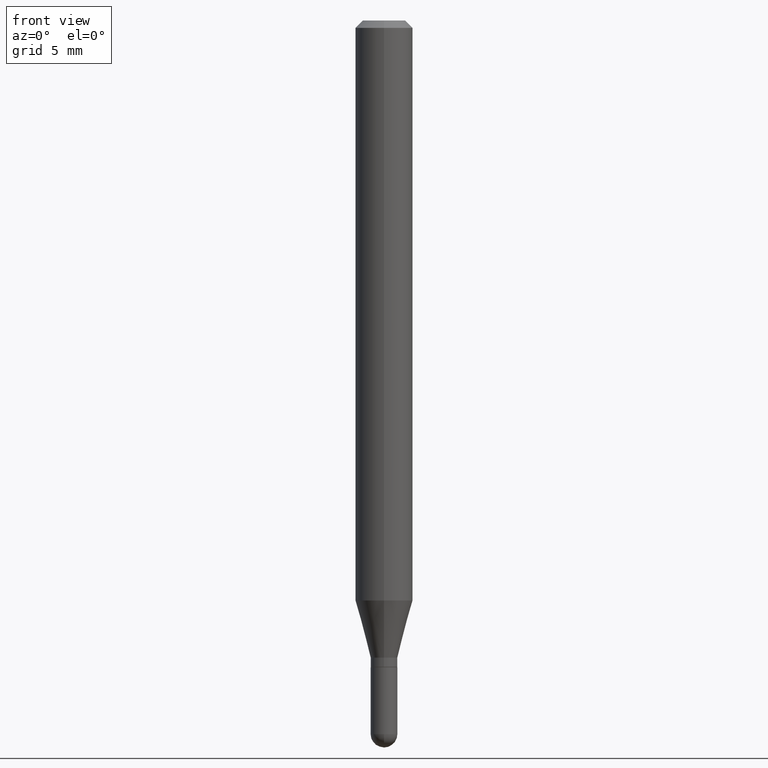
[diagram: clean part render]
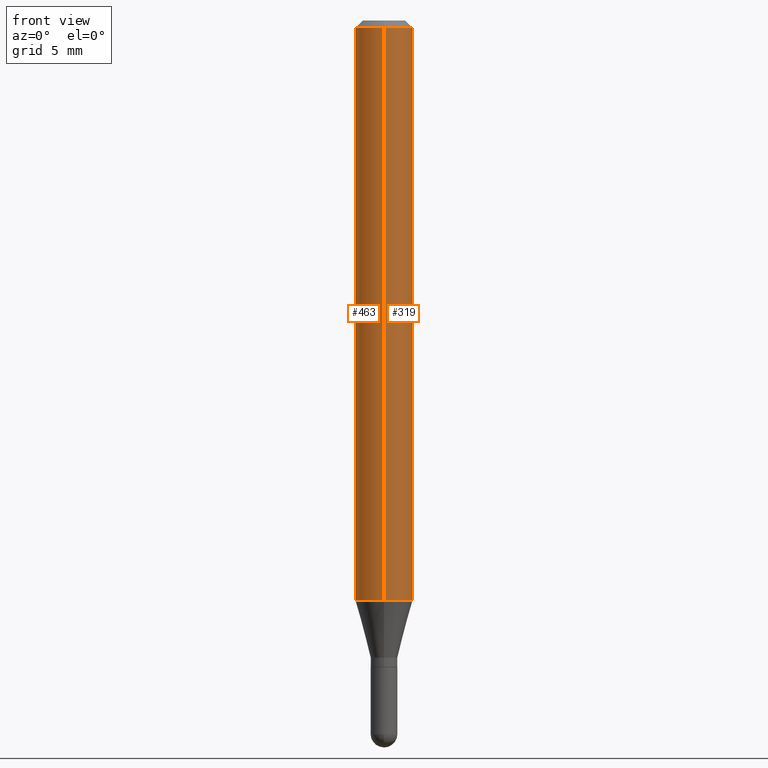
[diagram: same view with one multi-face feature highlighted, each face labeled with its STEP entity id]
A machine part, front view. The highlighted faces form ONE feature: a constant-radius fillet chain: 2 tangent blend faces with common blend radius 1.4999 mm. The faces share edges in the B-rep.
Their STEP definitions:
[1] entity #319 (Cylinder):
#30 = CARTESIAN_POINT ( 'NONE',  ( 4.195754854663390985E-16, 0.05904999999999999832, -2.061716865706596050E-16 ) ) ;
#57 = DIRECTION ( 'NONE',  ( -6.982962677686265922E-15, -1.000000000000000000, 3.491476487225395476E-15 ) ) ;
#63 = ORIENTED_EDGE ( 'NONE', *, *, #437, .T. ) ;
#64 = AXIS2_PLACEMENT_3D ( 'NONE', #454, #464, #254 ) ;
#67 = CARTESIAN_POINT ( 'NONE',  ( 4.195754854663680892E-16, 0.05904999999999580723, -1.193540399561580756 ) ) ;
#95 = ORIENTED_EDGE ( 'NONE', *, *, #348, .F. ) ;
#126 = CYLINDRICAL_SURFACE ( 'NONE', #137, 0.05904999999999999832 ) ;
#137 = AXIS2_PLACEMENT_3D ( 'NONE', #383, #165, #57 ) ;
#139 = LINE ( 'NONE', #30, #427 ) ;
#165 = DIRECTION ( 'NONE',  ( -2.445472194051704055E-29, 3.491476487225395476E-15, 1.000000000000000000 ) ) ;
#175 = EDGE_LOOP ( 'NONE', ( #193, #63, #95, #308 ) ) ;
#193 = ORIENTED_EDGE ( 'NONE', *, *, #247, .T. ) ;
#194 = DIRECTION ( 'NONE',  ( -2.445472194051704055E-29, 3.491476487225395476E-15, 1.000000000000000000 ) ) ;
#219 = LINE ( 'NONE', #498, #438 ) ;
#225 = VERTEX_POINT ( 'NONE', #432 ) ;
#239 = CARTESIAN_POINT ( 'NONE',  ( 4.195754854663684343E-16, 0.05904999999999994975, -0.01500000000000029955 ) ) ;
#247 = EDGE_CURVE ( 'NONE', #261, #402, #495, .T. ) ;
#254 = DIRECTION ( 'NONE',  ( -6.982962677686265922E-15, -1.000000000000000000, 3.505890868245046092E-15 ) ) ;
#259 = DIRECTION ( 'NONE',  ( -2.445472194051704055E-29, 3.491476487225395476E-15, 1.000000000000000000 ) ) ;
#260 = CARTESIAN_POINT ( 'NONE',  ( 2.918769859605206058E-29, -4.167218241622863015E-15, -1.193540399561580534 ) ) ;
#261 = VERTEX_POINT ( 'NONE', #483 ) ;
#265 = DIRECTION ( 'NONE',  ( -6.982962677686265922E-15, -1.000000000000000000, 4.626330217890369336E-15 ) ) ;
#271 = AXIS2_PLACEMENT_3D ( 'NONE', #260, #356, #265 ) ;
#303 = VERTEX_POINT ( 'NONE', #239 ) ;
#308 = ORIENTED_EDGE ( 'NONE', *, *, #399, .F. ) ;
#319 = ADVANCED_FACE ( 'NONE', ( #497 ), #126, .T. ) ;
#348 = EDGE_CURVE ( 'NONE', #225, #303, #355, .T. ) ;
#355 = CIRCLE ( 'NONE', #64, 0.05904999999999999832 ) ;
#356 = DIRECTION ( 'NONE',  ( -2.445472194051704055E-29, 3.491476487225395476E-15, 1.000000000000000000 ) ) ;
#383 = CARTESIAN_POINT ( 'NONE',  ( 0.000000000000000000, 0.000000000000000000, 0.000000000000000000 ) ) ;
#399 = EDGE_CURVE ( 'NONE', #261, #225, #219, .T. ) ;
#402 = VERTEX_POINT ( 'NONE', #67 ) ;
#427 = VECTOR ( 'NONE', #194, 39.37007874015748143 ) ;
#432 = CARTESIAN_POINT ( 'NONE',  ( -4.123439461173736383E-16, -0.05905000000000005383, -0.01499999999999988495 ) ) ;
#437 = EDGE_CURVE ( 'NONE', #402, #303, #139, .T. ) ;
#438 = VECTOR ( 'NONE', #259, 39.37007874015748143 ) ;
#454 = CARTESIAN_POINT ( 'NONE',  ( 3.668208291077578240E-31, -5.237214730838125755E-17, -0.01500000000000009139 ) ) ;
#464 = DIRECTION ( 'NONE',  ( -2.445472194051704055E-29, 3.491476487225395476E-15, 1.000000000000000000 ) ) ;
#483 = CARTESIAN_POINT ( 'NONE',  ( -4.123439461173449928E-16, -0.05905000000000418248, -1.193540399561580534 ) ) ;
#495 = CIRCLE ( 'NONE', #271, 0.05904999999999999832 ) ;
#497 = FACE_OUTER_BOUND ( 'NONE', #175, .T. ) ;
#498 = CARTESIAN_POINT ( 'NONE',  ( -4.123439461173739834E-16, -0.05904999999999999832, 2.061716865706596050E-16 ) ) ;
[2] entity #463 (Cylinder):
#27 = CARTESIAN_POINT ( 'NONE',  ( 2.918769859605206058E-29, -4.167218241622863015E-15, -1.193540399561580534 ) ) ;
#30 = CARTESIAN_POINT ( 'NONE',  ( 4.195754854663390985E-16, 0.05904999999999999832, -2.061716865706596050E-16 ) ) ;
#37 = AXIS2_PLACEMENT_3D ( 'NONE', #489, #251, #124 ) ;
#67 = CARTESIAN_POINT ( 'NONE',  ( 4.195754854663680892E-16, 0.05904999999999580723, -1.193540399561580756 ) ) ;
#81 = ORIENTED_EDGE ( 'NONE', *, *, #256, .T. ) ;
#111 = DIRECTION ( 'NONE',  ( -6.982962677686265922E-15, -1.000000000000000000, 4.626330217890369336E-15 ) ) ;
#123 = DIRECTION ( 'NONE',  ( -2.445472194051704055E-29, 3.491476487225395476E-15, 1.000000000000000000 ) ) ;
#124 = DIRECTION ( 'NONE',  ( -6.982962677686265922E-15, -1.000000000000000000, 3.505890868245046092E-15 ) ) ;
#139 = LINE ( 'NONE', #30, #427 ) ;
#145 = EDGE_LOOP ( 'NONE', ( #182, #81, #236, #479 ) ) ;
#181 = DIRECTION ( 'NONE',  ( -2.445472194051704055E-29, 3.491476487225395476E-15, 1.000000000000000000 ) ) ;
#182 = ORIENTED_EDGE ( 'NONE', *, *, #437, .F. ) ;
#194 = DIRECTION ( 'NONE',  ( -2.445472194051704055E-29, 3.491476487225395476E-15, 1.000000000000000000 ) ) ;
#219 = LINE ( 'NONE', #498, #438 ) ;
#225 = VERTEX_POINT ( 'NONE', #432 ) ;
#236 = ORIENTED_EDGE ( 'NONE', *, *, #399, .T. ) ;
#239 = CARTESIAN_POINT ( 'NONE',  ( 4.195754854663684343E-16, 0.05904999999999994975, -0.01500000000000029955 ) ) ;
#250 = CYLINDRICAL_SURFACE ( 'NONE', #364, 0.05904999999999999832 ) ;
#251 = DIRECTION ( 'NONE',  ( -2.445472194051704055E-29, 3.491476487225395476E-15, 1.000000000000000000 ) ) ;
#256 = EDGE_CURVE ( 'NONE', #402, #261, #272, .T. ) ;
#259 = DIRECTION ( 'NONE',  ( -2.445472194051704055E-29, 3.491476487225395476E-15, 1.000000000000000000 ) ) ;
#261 = VERTEX_POINT ( 'NONE', #483 ) ;
#272 = CIRCLE ( 'NONE', #471, 0.05904999999999999832 ) ;
#282 = CIRCLE ( 'NONE', #37, 0.05904999999999999832 ) ;
#284 = DIRECTION ( 'NONE',  ( -6.982962677686265922E-15, -1.000000000000000000, 3.491476487225395476E-15 ) ) ;
#285 = CARTESIAN_POINT ( 'NONE',  ( 0.000000000000000000, 0.000000000000000000, 0.000000000000000000 ) ) ;
#303 = VERTEX_POINT ( 'NONE', #239 ) ;
#324 = FACE_OUTER_BOUND ( 'NONE', #145, .T. ) ;
#347 = EDGE_CURVE ( 'NONE', #303, #225, #282, .T. ) ;
#364 = AXIS2_PLACEMENT_3D ( 'NONE', #285, #123, #284 ) ;
#399 = EDGE_CURVE ( 'NONE', #261, #225, #219, .T. ) ;
#402 = VERTEX_POINT ( 'NONE', #67 ) ;
#427 = VECTOR ( 'NONE', #194, 39.37007874015748143 ) ;
#432 = CARTESIAN_POINT ( 'NONE',  ( -4.123439461173736383E-16, -0.05905000000000005383, -0.01499999999999988495 ) ) ;
#437 = EDGE_CURVE ( 'NONE', #402, #303, #139, .T. ) ;
#438 = VECTOR ( 'NONE', #259, 39.37007874015748143 ) ;
#463 = ADVANCED_FACE ( 'NONE', ( #324 ), #250, .T. ) ;
#471 = AXIS2_PLACEMENT_3D ( 'NONE', #27, #181, #111 ) ;
#479 = ORIENTED_EDGE ( 'NONE', *, *, #347, .F. ) ;
#483 = CARTESIAN_POINT ( 'NONE',  ( -4.123439461173449928E-16, -0.05905000000000418248, -1.193540399561580534 ) ) ;
#489 = CARTESIAN_POINT ( 'NONE',  ( 3.668208291077578240E-31, -5.237214730838125755E-17, -0.01500000000000009139 ) ) ;
#498 = CARTESIAN_POINT ( 'NONE',  ( -4.123439461173739834E-16, -0.05904999999999999832, 2.061716865706596050E-16 ) ) ;